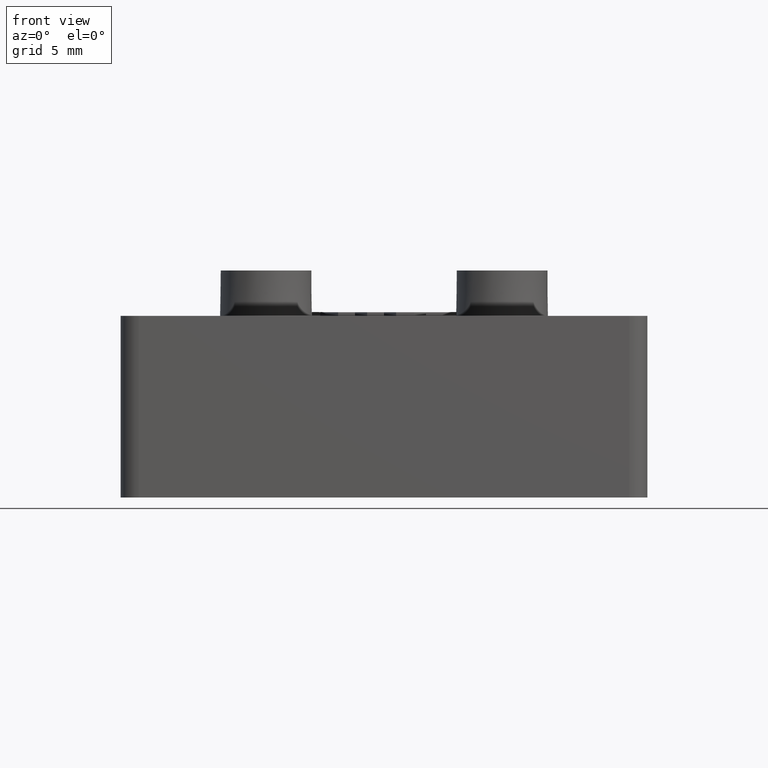
[diagram: clean part render]
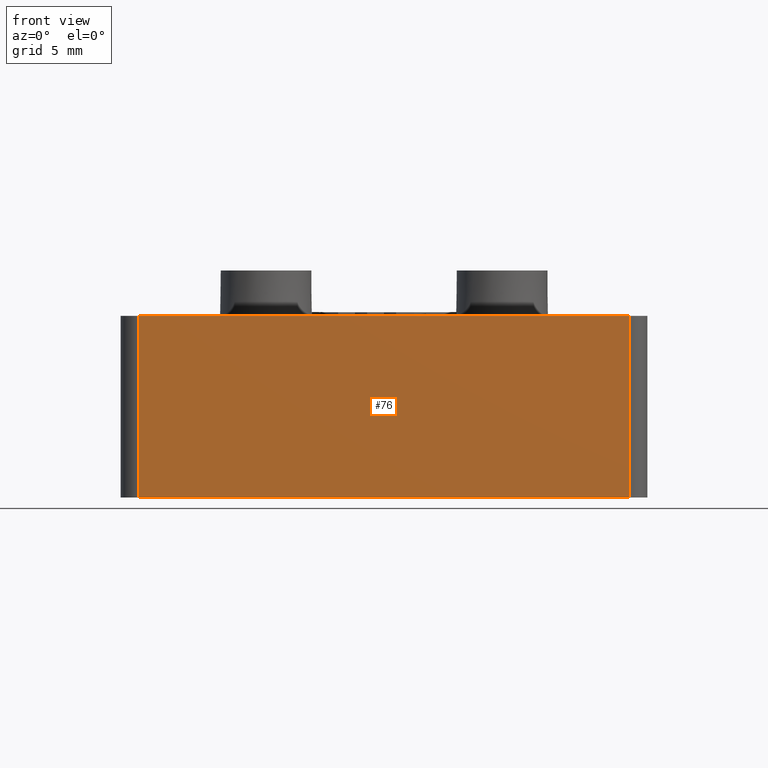
[diagram: same view with one face highlighted and labeled with its STEP entity id]
A machine part, front view. The second image highlights one B-rep face of the part: STEP entity #76.
In plain terms, the highlighted planar face has unit normal (0, 1, -0).
Its self-contained STEP definition (entity closure, byte-faithful):
#76 = ADVANCED_FACE( '', ( #291 ), #292, .F. );
#291 = FACE_OUTER_BOUND( '', #703, .T. );
#292 = PLANE( '', #704 );
#703 = EDGE_LOOP( '', ( #1221, #1222, #1223, #1224 ) );
#704 = AXIS2_PLACEMENT_3D( '', #1225, #1226, #1227 );
#1221 = ORIENTED_EDGE( '', *, *, #2726, .F. );
#1222 = ORIENTED_EDGE( '', *, *, #2732, .T. );
#1223 = ORIENTED_EDGE( '', *, *, #2733, .T. );
#1224 = ORIENTED_EDGE( '', *, *, #2734, .T. );
#1225 = CARTESIAN_POINT( '', ( 25.5000000000000, -12.5000000000000, -1.31124088366755E-014 ) );
#1226 = DIRECTION( '', ( 0.000000000000000, 1.00000000000000, -6.12303176911189E-017 ) );
#1227 = DIRECTION( '', ( 1.00000000000000, 0.000000000000000, 0.000000000000000 ) );
#2726 = EDGE_CURVE( '', #3319, #3321, #3322, .T. );
#2732 = EDGE_CURVE( '', #3319, #3332, #3333, .T. );
#2733 = EDGE_CURVE( '', #3332, #3334, #3335, .T. );
#2734 = EDGE_CURVE( '', #3334, #3321, #3336, .T. );
#3319 = VERTEX_POINT( '', #4228 );
#3321 = VERTEX_POINT( '', #4230 );
#3322 = LINE( '', #4231, #4232 );
#3332 = VERTEX_POINT( '', #4244 );
#3333 = LINE( '', #4245, #4246 );
#3334 = VERTEX_POINT( '', #4247 );
#3335 = LINE( '', #4248, #4249 );
#3336 = LINE( '', #4250, #4251 );
#4228 = CARTESIAN_POINT( '', ( 13.5000000000000, -12.5000000000000, -4.78068783562116E-014 ) );
#4230 = CARTESIAN_POINT( '', ( -13.5000000000000, -12.5000000000000, -2.00513027405827E-014 ) );
#4231 = CARTESIAN_POINT( '', ( 25.5000000000000, -12.5000000000000, -1.31124088366755E-014 ) );
#4232 = VECTOR( '', #5232, 1000.00000000000 );
#4244 = CARTESIAN_POINT( '', ( 13.5000000000000, -12.5000000000000, 9.99999999999999 ) );
#4245 = CARTESIAN_POINT( '', ( 13.5000000000000, -12.5000000000000, -48.4691613728852 ) );
#4246 = VECTOR( '', #5244, 1000.00000000000 );
#4247 = CARTESIAN_POINT( '', ( -13.5000000000000, -12.5000000000000, 9.99999999999999 ) );
#4248 = CARTESIAN_POINT( '', ( 25.5000000000000, -12.5000000000000, 9.99999999999999 ) );
#4249 = VECTOR( '', #5245, 1000.00000000000 );
#4250 = CARTESIAN_POINT( '', ( -13.5000000000000, -12.5000000000000, 77.3643705501590 ) );
#4251 = VECTOR( '', #5246, 1000.00000000000 );
#5232 = DIRECTION( '', ( -1.00000000000000, 0.000000000000000, 0.000000000000000 ) );
#5244 = DIRECTION( '', ( 1.49519739311857E-016, 2.33178017899756E-016, 1.00000000000000 ) );
#5245 = DIRECTION( '', ( -1.00000000000000, 0.000000000000000, 0.000000000000000 ) );
#5246 = DIRECTION( '', ( 1.49519739311858E-016, -2.33178017899756E-016, -1.00000000000000 ) );